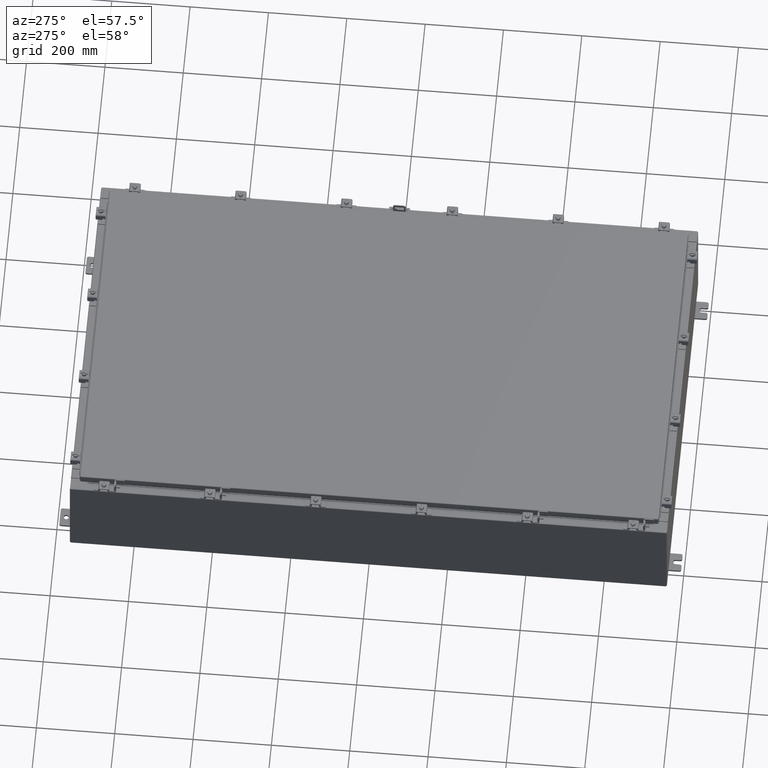
[diagram: clean part render]
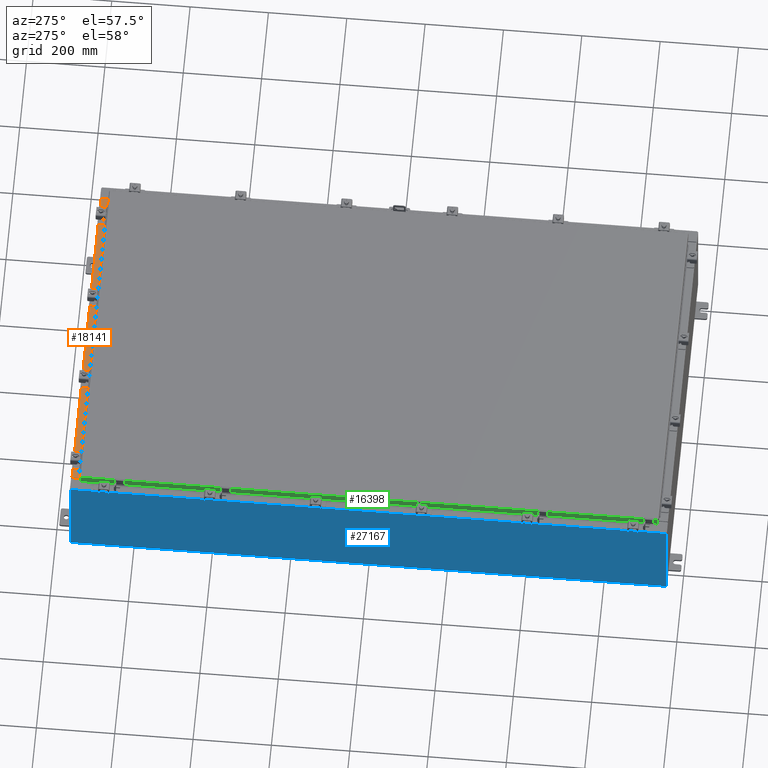
[diagram: same view with three faces highlighted in distinct colors, each labeled with its STEP entity id]
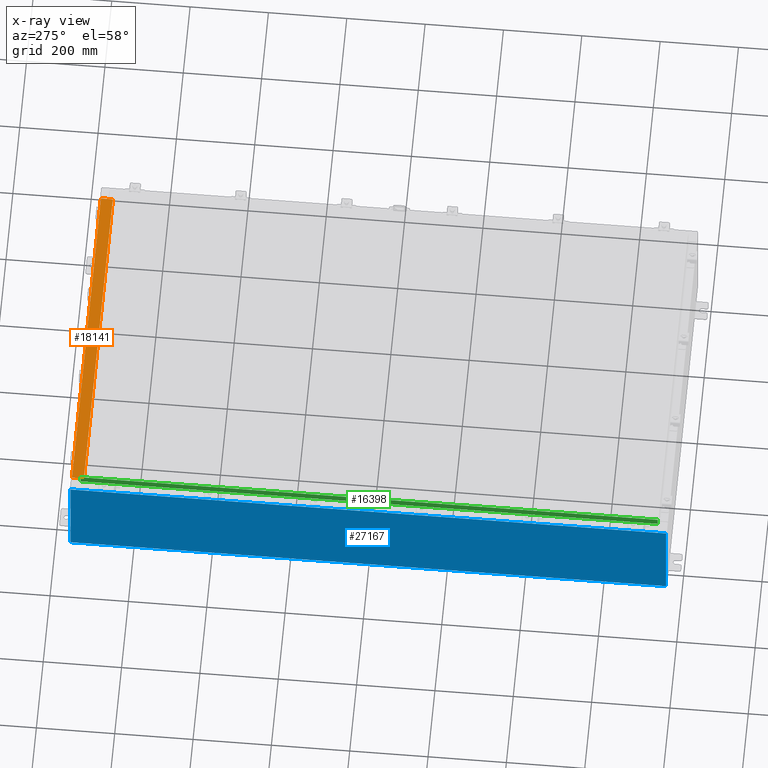
[diagram: x-ray of the same camera — body ghosted, the three highlighted faces saturated]
A machine part, auxiliary view with three faces highlighted in distinct colors.
The next image is the same camera in x-ray (body ghosted, the three faces saturated) — at least one of them is partly hidden behind the body in this view.
Their STEP definitions:

[orange] entity #18141 — the highlighted planar face has unit normal (0, 0, 1).
#3139 = DIRECTION ( 'NONE',  ( -1.000000000000000000, -3.284023746380717400E-017, 1.171208052571274300E-031 ) ) ;
#3316 = CARTESIAN_POINT ( 'NONE',  ( 16.63720000000000000, -1.287299999999999900, 5.000000000000004400 ) ) ;
#3326 = CARTESIAN_POINT ( 'NONE',  ( 16.63720000000000400, -1.287299999999999900, 5.000000000000002700 ) ) ;
#3618 = DIRECTION ( 'NONE',  ( -0.0000000000000000000, -1.000000000000000000, 3.566381192773190000E-015 ) ) ;
#3851 = FACE_OUTER_BOUND ( 'NONE', #7111, .T. ) ;
#4087 = VECTOR ( 'NONE', #3618, 39.37007874015748100 ) ;
#4875 = CARTESIAN_POINT ( 'NONE',  ( 0.0000000000000000000, 1.782631094477737600E-014, 5.000000000000000000 ) ) ;
#5435 = ORIENTED_EDGE ( 'NONE', *, *, #20254, .F. ) ;
#5513 = VERTEX_POINT ( 'NONE', #3316 ) ;
#6395 = ORIENTED_EDGE ( 'NONE', *, *, #15433, .T. ) ;
#6477 = CARTESIAN_POINT ( 'NONE',  ( 16.63720000000000400, -0.08770000000000047200, 5.000000000000000000 ) ) ;
#6739 = VERTEX_POINT ( 'NONE', #11317 ) ;
#7000 = DIRECTION ( 'NONE',  ( 0.0000000000000000000, -1.000000000000000000, 3.566381192773190000E-015 ) ) ;
#7111 = EDGE_LOOP ( 'NONE', ( #11651, #7860, #5435, #6395 ) ) ;
#7860 = ORIENTED_EDGE ( 'NONE', *, *, #26817, .F. ) ;
#8854 = VECTOR ( 'NONE', #3139, 39.37007874015748100 ) ;
#9083 = PLANE ( 'NONE',  #17390 ) ;
#9433 = CARTESIAN_POINT ( 'NONE',  ( -16.63720000000000000, -0.07469999999999973900, 5.000000000000000000 ) ) ;
#11317 = CARTESIAN_POINT ( 'NONE',  ( -16.63720000000000000, -1.287299999999999200, 5.000000000000004400 ) ) ;
#11581 = CARTESIAN_POINT ( 'NONE',  ( 2.880088825576501100E-018, -0.08770000000000081900, 5.000000000000000000 ) ) ;
#11651 = ORIENTED_EDGE ( 'NONE', *, *, #14187, .F. ) ;
#13400 = VERTEX_POINT ( 'NONE', #6477 ) ;
#14187 = EDGE_CURVE ( 'NONE', #6739, #19406, #20862, .T. ) ;
#15409 = LINE ( 'NONE', #3326, #25448 ) ;
#15433 = EDGE_CURVE ( 'NONE', #13400, #19406, #25865, .T. ) ;
#16328 = CARTESIAN_POINT ( 'NONE',  ( 16.63720000000000000, -1.300299999999999800, 5.000000000000004400 ) ) ;
#17390 = AXIS2_PLACEMENT_3D ( 'NONE', #4875, #19749, #7000 ) ;
#17424 = CARTESIAN_POINT ( 'NONE',  ( -16.63720000000000000, -0.08770000000000081900, 5.000000000000000000 ) ) ;
#18141 = ADVANCED_FACE ( 'NONE', ( #3851 ), #9083, .T. ) ;
#19406 = VERTEX_POINT ( 'NONE', #17424 ) ;
#19749 = DIRECTION ( 'NONE',  ( 0.0000000000000000000, 3.566381192773190000E-015, 1.000000000000000000 ) ) ;
#20179 = VECTOR ( 'NONE', #26480, 39.37007874015748100 ) ;
#20254 = EDGE_CURVE ( 'NONE', #13400, #5513, #25409, .T. ) ;
#20862 = LINE ( 'NONE', #9433, #20179 ) ;
#22395 = DIRECTION ( 'NONE',  ( -1.000000000000000000, 0.0000000000000000000, 0.0000000000000000000 ) ) ;
#25409 = LINE ( 'NONE', #16328, #4087 ) ;
#25448 = VECTOR ( 'NONE', #22395, 39.37007874015748100 ) ;
#25865 = LINE ( 'NONE', #11581, #8854 ) ;
#26480 = DIRECTION ( 'NONE',  ( -0.0000000000000000000, 1.000000000000000000, -3.566381192773190000E-015 ) ) ;
#26817 = EDGE_CURVE ( 'NONE', #5513, #6739, #15409, .T. ) ;

[blue] entity #27167 — the highlighted planar face has unit normal (1, 0, 0).
#1571 = CARTESIAN_POINT ( 'NONE',  ( -18.00000000000003900, -29.92530000000001100, 9.837599999999998300 ) ) ;
#2473 = FACE_OUTER_BOUND ( 'NONE', #12288, .T. ) ;
#2560 = CARTESIAN_POINT ( 'NONE',  ( -18.00000000000000400, 29.92529999999998900, -6.367630515150756800E-014 ) ) ;
#2836 = DIRECTION ( 'NONE',  ( -0.0000000000000000000, 1.000000000000000000, -0.0000000000000000000 ) ) ;
#3075 = CARTESIAN_POINT ( 'NONE',  ( -18.00000000000000400, 29.92529999999998900, 0.01299999999999984700 ) ) ;
#3083 = ORIENTED_EDGE ( 'NONE', *, *, #26111, .T. ) ;
#3704 = DIRECTION ( 'NONE',  ( -3.523082860860888200E-015, 0.0000000000000000000, 1.000000000000000000 ) ) ;
#3775 = VERTEX_POINT ( 'NONE', #4904 ) ;
#4156 = VECTOR ( 'NONE', #22694, 39.37007874015748100 ) ;
#4307 = PLANE ( 'NONE',  #11535 ) ;
#4805 = LINE ( 'NONE', #16234, #4156 ) ;
#4904 = CARTESIAN_POINT ( 'NONE',  ( -18.00000000000003900, 29.92529999999998900, 9.837599999999998300 ) ) ;
#6968 = EDGE_CURVE ( 'NONE', #10970, #24398, #16142, .T. ) ;
#8575 = DIRECTION ( 'NONE',  ( 3.523082860860887800E-015, 0.0000000000000000000, -1.000000000000000000 ) ) ;
#9475 = ORIENTED_EDGE ( 'NONE', *, *, #12568, .T. ) ;
#10970 = VERTEX_POINT ( 'NONE', #15572 ) ;
#11535 = AXIS2_PLACEMENT_3D ( 'NONE', #21237, #12781, #8575 ) ;
#12288 = EDGE_LOOP ( 'NONE', ( #3083, #18291, #20070, #9475 ) ) ;
#12568 = EDGE_CURVE ( 'NONE', #10970, #17835, #14592, .T. ) ;
#12781 = DIRECTION ( 'NONE',  ( 1.000000000000000000, 0.0000000000000000000, 3.523082860860887800E-015 ) ) ;
#13073 = CARTESIAN_POINT ( 'NONE',  ( -18.00000000000000400, 29.92529999999998600, 0.01299999999999984300 ) ) ;
#14592 = LINE ( 'NONE', #16409, #21605 ) ;
#15234 = DIRECTION ( 'NONE',  ( 3.523082860860888200E-015, 0.0000000000000000000, -1.000000000000000000 ) ) ;
#15463 = VECTOR ( 'NONE', #2836, 39.37007874015748100 ) ;
#15572 = CARTESIAN_POINT ( 'NONE',  ( -18.00000000000000400, -29.92530000000001100, 0.01299999999999984700 ) ) ;
#16099 = VECTOR ( 'NONE', #15234, 39.37007874015748100 ) ;
#16142 = LINE ( 'NONE', #3075, #15463 ) ;
#16234 = CARTESIAN_POINT ( 'NONE',  ( -18.00000000000003900, -29.92530000000001800, 9.837599999999998300 ) ) ;
#16409 = CARTESIAN_POINT ( 'NONE',  ( -18.00000000000000400, -29.92530000000001100, -6.367630515150756800E-014 ) ) ;
#16796 = EDGE_CURVE ( 'NONE', #3775, #24398, #21780, .T. ) ;
#17835 = VERTEX_POINT ( 'NONE', #1571 ) ;
#18291 = ORIENTED_EDGE ( 'NONE', *, *, #16796, .T. ) ;
#20070 = ORIENTED_EDGE ( 'NONE', *, *, #6968, .F. ) ;
#21237 = CARTESIAN_POINT ( 'NONE',  ( -18.00000000000000400, 0.0000000000000000000, -6.367630515150756800E-014 ) ) ;
#21605 = VECTOR ( 'NONE', #3704, 39.37007874015748100 ) ;
#21780 = LINE ( 'NONE', #2560, #16099 ) ;
#22694 = DIRECTION ( 'NONE',  ( 0.0000000000000000000, 1.000000000000000000, 0.0000000000000000000 ) ) ;
#24398 = VERTEX_POINT ( 'NONE', #13073 ) ;
#26111 = EDGE_CURVE ( 'NONE', #17835, #3775, #4805, .T. ) ;
#27167 = ADVANCED_FACE ( 'NONE', ( #2473 ), #4307, .F. ) ;

[green] entity #16398 — the highlighted planar face has unit normal (1, 0, -0).
#222 = DIRECTION ( 'NONE',  ( 4.379057701015054300E-047, 1.000000000000000000, 1.197190551977018000E-016 ) ) ;
#1012 = VECTOR ( 'NONE', #24943, 39.37007874015748100 ) ;
#1038 = VECTOR ( 'NONE', #10356, 39.37007874015748100 ) ;
#1148 = ORIENTED_EDGE ( 'NONE', *, *, #17669, .T. ) ;
#1209 = CARTESIAN_POINT ( 'NONE',  ( -17.07799999999998500, -28.25515786437626500, -0.8500000000000017500 ) ) ;
#1896 = VECTOR ( 'NONE', #9574, 39.37007874015748100 ) ;
#2746 = CARTESIAN_POINT ( 'NONE',  ( -17.07799999999999600, -29.00515786437627600, -0.08770000000000007000 ) ) ;
#2961 = AXIS2_PLACEMENT_3D ( 'NONE', #26778, #18252, #5524 ) ;
#3633 = EDGE_CURVE ( 'NONE', #11105, #11442, #17992, .T. ) ;
#4802 = VERTEX_POINT ( 'NONE', #16700 ) ;
#5524 = DIRECTION ( 'NONE',  ( -2.818880942772360100E-015, 0.0000000000000000000, -1.000000000000000000 ) ) ;
#5856 = CARTESIAN_POINT ( 'NONE',  ( -17.07799999999999900, -29.09400000000000500, -0.8499999999999996400 ) ) ;
#9574 = DIRECTION ( 'NONE',  ( -2.818880942772360100E-015, 6.982962677686265900E-015, -1.000000000000000000 ) ) ;
#10356 = DIRECTION ( 'NONE',  ( -0.0000000000000000000, 1.000000000000000000, -0.0000000000000000000 ) ) ;
#10498 = CARTESIAN_POINT ( 'NONE',  ( -17.07799999999999600, -29.09400000000000500, -0.08770000000000007000 ) ) ;
#10521 = CARTESIAN_POINT ( 'NONE',  ( -17.07799999999998500, -28.25515786437626500, -0.8500000000000017500 ) ) ;
#11105 = VERTEX_POINT ( 'NONE', #1209 ) ;
#11442 = VERTEX_POINT ( 'NONE', #16771 ) ;
#11455 = VECTOR ( 'NONE', #16852, 39.37007874015748100 ) ;
#11586 = EDGE_LOOP ( 'NONE', ( #22857, #1148, #16765, #27125, #16024, #12933 ) ) ;
#11938 = EDGE_CURVE ( 'NONE', #11442, #20578, #17300, .T. ) ;
#12832 = VERTEX_POINT ( 'NONE', #21916 ) ;
#12933 = ORIENTED_EDGE ( 'NONE', *, *, #20695, .F. ) ;
#13353 = CARTESIAN_POINT ( 'NONE',  ( -17.07799999999999600, -29.00515786437627200, -0.07469999999999978000 ) ) ;
#16024 = ORIENTED_EDGE ( 'NONE', *, *, #22975, .F. ) ;
#16115 = PLANE ( 'NONE',  #2961 ) ;
#16398 = ADVANCED_FACE ( 'NONE', ( #19130 ), #16115, .F. ) ;
#16700 = CARTESIAN_POINT ( 'NONE',  ( -17.07799999999999600, 29.00515786437626500, -0.08770000000000007000 ) ) ;
#16765 = ORIENTED_EDGE ( 'NONE', *, *, #11938, .F. ) ;
#16771 = CARTESIAN_POINT ( 'NONE',  ( -17.07799999999998500, 28.25515786437626500, -0.8500000000000017500 ) ) ;
#16852 = DIRECTION ( 'NONE',  ( 3.374737631835139200E-031, -1.000000000000000000, -9.198750492177080800E-046 ) ) ;
#17089 = LINE ( 'NONE', #10498, #11455 ) ;
#17300 = LINE ( 'NONE', #5856, #1012 ) ;
#17626 = DIRECTION ( 'NONE',  ( -2.818880942772360100E-015, 6.982962677686265900E-015, -1.000000000000000000 ) ) ;
#17669 = EDGE_CURVE ( 'NONE', #4802, #20578, #24520, .T. ) ;
#17923 = VECTOR ( 'NONE', #222, 39.37007874015748100 ) ;
#17992 = LINE ( 'NONE', #10521, #1038 ) ;
#18252 = DIRECTION ( 'NONE',  ( 1.000000000000000000, 3.374737631835138300E-031, -2.818880942772360100E-015 ) ) ;
#18570 = LINE ( 'NONE', #19256, #17923 ) ;
#19130 = FACE_OUTER_BOUND ( 'NONE', #11586, .T. ) ;
#19228 = EDGE_CURVE ( 'NONE', #4802, #27323, #17089, .T. ) ;
#19256 = CARTESIAN_POINT ( 'NONE',  ( -17.07799999999999900, -29.09400000000000500, -0.8499999999999996400 ) ) ;
#20234 = CARTESIAN_POINT ( 'NONE',  ( -17.07799999999999600, 29.00515786437626500, 2.509435972240157400E-013 ) ) ;
#20578 = VERTEX_POINT ( 'NONE', #21460 ) ;
#20695 = EDGE_CURVE ( 'NONE', #27323, #12832, #22375, .T. ) ;
#21460 = CARTESIAN_POINT ( 'NONE',  ( -17.07799999999999900, 29.00515786437627200, -0.8499999999999927600 ) ) ;
#21916 = CARTESIAN_POINT ( 'NONE',  ( -17.07799999999999900, -29.00515786437626500, -0.8499999999999996400 ) ) ;
#22375 = LINE ( 'NONE', #13353, #27398 ) ;
#22857 = ORIENTED_EDGE ( 'NONE', *, *, #19228, .F. ) ;
#22975 = EDGE_CURVE ( 'NONE', #12832, #11105, #18570, .T. ) ;
#24520 = LINE ( 'NONE', #20234, #1896 ) ;
#24943 = DIRECTION ( 'NONE',  ( 4.379057701015054300E-047, 1.000000000000000000, 1.197190551977018000E-016 ) ) ;
#26778 = CARTESIAN_POINT ( 'NONE',  ( -17.07799999999999600, -5.763376927648048400E-030, 4.840166239667793400E-014 ) ) ;
#27125 = ORIENTED_EDGE ( 'NONE', *, *, #3633, .F. ) ;
#27323 = VERTEX_POINT ( 'NONE', #2746 ) ;
#27398 = VECTOR ( 'NONE', #17626, 39.37007874015748100 ) ;